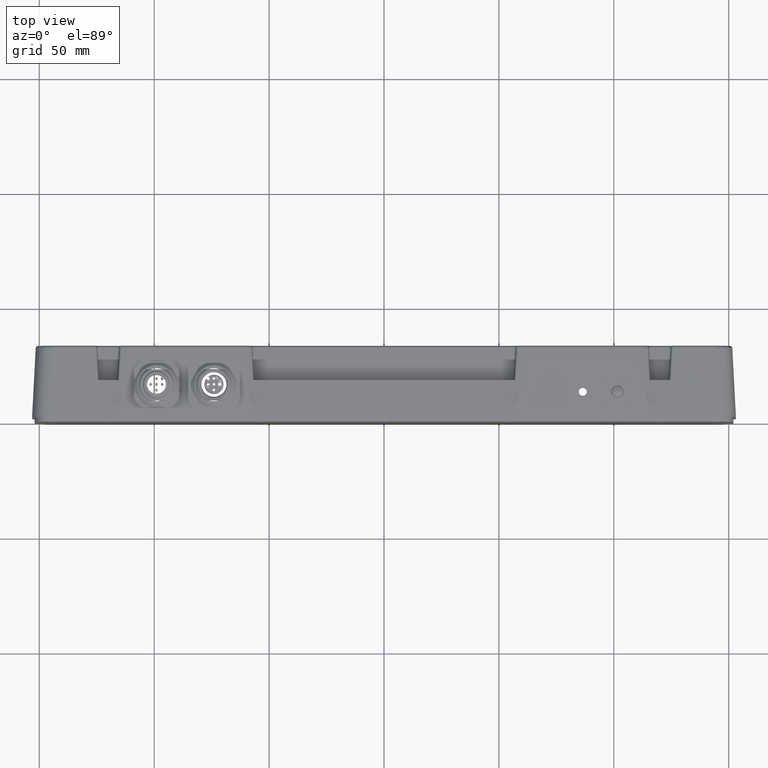
[diagram: clean part render]
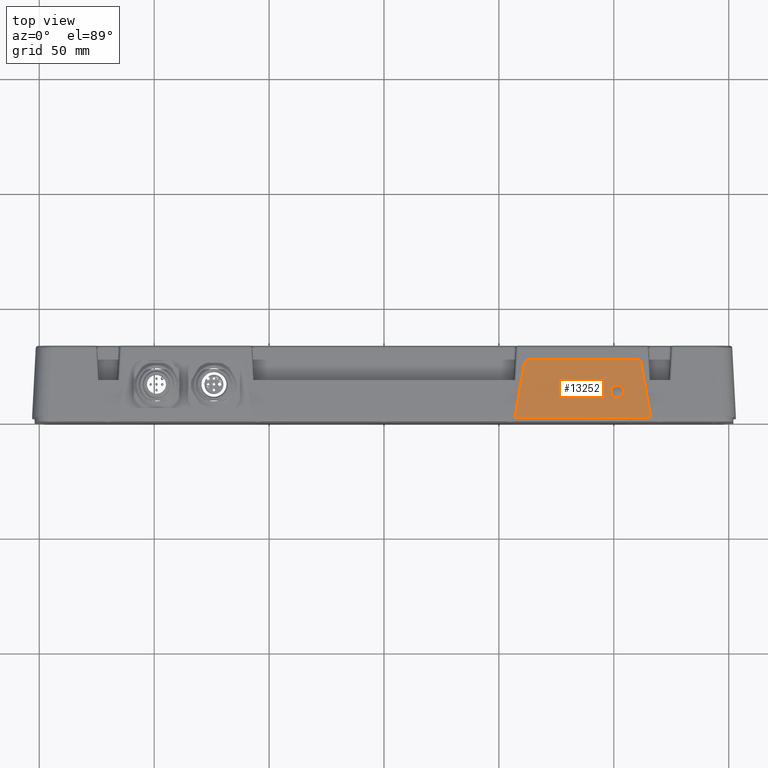
[diagram: same view with one face highlighted and labeled with its STEP entity id]
A machine part, top view. The second image highlights one B-rep face of the part: STEP entity #13252.
In plain terms, the highlighted planar face has unit normal (0, 0.0087, 1).
Its self-contained STEP definition (entity closure, byte-faithful):
#586 = DIRECTION ( 'NONE',  ( 0.000000000000000000, 0.008726535498373953759, 0.9999619230641713097 ) ) ;
#1626 = CARTESIAN_POINT ( 'NONE',  ( 101.5000000000000000, 10.21968862758748919, 32.55290903597765606 ) ) ;
#2273 = CARTESIAN_POINT ( 'NONE',  ( 111.7069147452497617, 26.34729797533385920, 32.41216552141884932 ) ) ;
#2535 = LINE ( 'NONE', #12931, #30423 ) ;
#3267 = FACE_BOUND ( 'NONE', #29582, .T. ) ;
#3398 = CARTESIAN_POINT ( 'NONE',  ( 63.08637378006618235, 27.00000162000000259, 32.40646946300529407 ) ) ;
#3487 = AXIS2_PLACEMENT_3D ( 'NONE', #24517, #586, #29498 ) ;
#3817 = CARTESIAN_POINT ( 'NONE',  ( 86.50000000000001421, 11.21965055065166617, 32.54418250047926620 ) ) ;
#4250 = CARTESIAN_POINT ( 'NONE',  ( 115.9033348786963415, 2.548216765040473675, 32.61985695668259666 ) ) ;
#4761 = CARTESIAN_POINT ( 'NONE',  ( 56.99999999999997158, 2.000001619999999924, 32.62464115777427764 ) ) ;
#5132 = CARTESIAN_POINT ( 'NONE',  ( 111.8832417259582002, 25.34729797533386275, 32.42089238920960526 ) ) ;
#6281 = AXIS2_PLACEMENT_3D ( 'NONE', #24773, #16846, #31960 ) ;
#6532 = EDGE_CURVE ( 'NONE', #9453, #9453, #9729, .T. ) ;
#7106 = ORIENTED_EDGE ( 'NONE', *, *, #30516, .T. ) ;
#7593 = DIRECTION ( 'NONE',  ( 1.000000000000000000, -0.000000000000000000, -0.000000000000000000 ) ) ;
#8214 = VECTOR ( 'NONE', #28083, 1000.000000000000114 ) ;
#9323 = VERTEX_POINT ( 'NONE', #22500 ) ;
#9453 = VERTEX_POINT ( 'NONE', #1626 ) ;
#9497 =( BOUNDED_CURVE ( )  B_SPLINE_CURVE ( 3, ( #5132, #2273, #15409, #23486 ),
 .UNSPECIFIED., .F., .T. ) 
 B_SPLINE_CURVE_WITH_KNOTS ( ( 4, 4 ),
 ( 1.745329251994332642, 3.141592653589793116 ),
 .UNSPECIFIED. ) 
 CURVE ( )  GEOMETRIC_REPRESENTATION_ITEM ( )  RATIONAL_B_SPLINE_CURVE ( ( 1.000000000000000000, 0.8440296287459859714, 0.8440296287459859714, 1.000000000000000000 ) ) 
 REPRESENTATION_ITEM ( '' )  );
#9705 = EDGE_CURVE ( 'NONE', #21030, #9323, #9497, .T. ) ;
#9729 = CIRCLE ( 'NONE', #22876, 2.750000000000008438 ) ;
#10209 =( BOUNDED_CURVE ( )  B_SPLINE_CURVE ( 3, ( #15519, #25822, #30788, #10377 ),
 .UNSPECIFIED., .F., .T. ) 
 B_SPLINE_CURVE_WITH_KNOTS ( ( 4, 4 ),
 ( 3.141592653589793116, 4.537856055185256920 ),
 .UNSPECIFIED. ) 
 CURVE ( )  GEOMETRIC_REPRESENTATION_ITEM ( )  RATIONAL_B_SPLINE_CURVE ( ( 1.000000000000000000, 0.8440296287459851943, 0.8440296287459851943, 1.000000000000000000 ) ) 
 REPRESENTATION_ITEM ( '' )  );
#10377 = CARTESIAN_POINT ( 'NONE',  ( 61.11675827404177141, 25.34729797533385920, 32.42089238920960526 ) ) ;
#10770 = EDGE_CURVE ( 'NONE', #33627, #21030, #14507, .T. ) ;
#10974 = FACE_OUTER_BOUND ( 'NONE', #17685, .T. ) ;
#11498 = CARTESIAN_POINT ( 'NONE',  ( 101.5000000000000000, 12.96958391601396876, 32.52891106335712834 ) ) ;
#11867 = ORIENTED_EDGE ( 'NONE', *, *, #18971, .T. ) ;
#12603 = CARTESIAN_POINT ( 'NONE',  ( 61.11675827404177141, 25.34729797533385920, 32.42089238920960526 ) ) ;
#12931 = CARTESIAN_POINT ( 'NONE',  ( 115.9999999999999858, 2.000001619999998592, 32.62464115777427764 ) ) ;
#13252 = ADVANCED_FACE ( 'NONE', ( #3267, #27082, #10974 ), #21592, .T. ) ;
#13266 = LINE ( 'NONE', #23570, #15636 ) ;
#14008 = EDGE_CURVE ( 'NONE', #27288, #27288, #28214, .T. ) ;
#14507 = LINE ( 'NONE', #4250, #8214 ) ;
#14824 = DIRECTION ( 'NONE',  ( -1.000000000000000000, -0.000000000000000000, -0.000000000000000000 ) ) ;
#15409 = CARTESIAN_POINT ( 'NONE',  ( 110.9290528318195470, 27.00000161999999904, 32.40646946300530118 ) ) ;
#15519 = CARTESIAN_POINT ( 'NONE',  ( 63.08637378006618235, 27.00000162000000259, 32.40646946300529407 ) ) ;
#15636 = VECTOR ( 'NONE', #16173, 1000.000000000000114 ) ;
#15955 = ORIENTED_EDGE ( 'NONE', *, *, #14008, .F. ) ;
#16173 = DIRECTION ( 'NONE',  ( -0.1736417650412786229, -0.9847713852049319039, 0.008593969682805855173 ) ) ;
#16846 = DIRECTION ( 'NONE',  ( -0.000000000000000000, 0.008726535498373953759, 0.9999619230641713097 ) ) ;
#16897 = VERTEX_POINT ( 'NONE', #3398 ) ;
#16959 = CARTESIAN_POINT ( 'NONE',  ( 115.9999999999999858, 2.000001619999998592, 32.62464115777427764 ) ) ;
#17660 = VERTEX_POINT ( 'NONE', #12603 ) ;
#17685 = EDGE_LOOP ( 'NONE', ( #24660, #7106, #11867, #26750, #28160, #29443 ) ) ;
#18133 = VECTOR ( 'NONE', #14824, 1000.000000000000000 ) ;
#18694 = DIRECTION ( 'NONE',  ( 0.000000000000000000, -0.9999619230641713097, 0.008726535498374718772 ) ) ;
#18931 = EDGE_CURVE ( 'NONE', #27793, #33627, #2535, .T. ) ;
#18971 = EDGE_CURVE ( 'NONE', #17660, #27793, #13266, .T. ) ;
#21030 = VERTEX_POINT ( 'NONE', #28264 ) ;
#21256 = DIRECTION ( 'NONE',  ( 0.000000000000000000, 0.008726535498373953759, 0.9999619230641713097 ) ) ;
#21592 = PLANE ( 'NONE',  #3487 ) ;
#22500 = CARTESIAN_POINT ( 'NONE',  ( 109.9136262199338034, 27.00000162000000259, 32.40646946300529407 ) ) ;
#22876 = AXIS2_PLACEMENT_3D ( 'NONE', #11498, #21256, #18694 ) ;
#22898 = CARTESIAN_POINT ( 'NONE',  ( 111.5918254822883569, 27.00000162000000259, 32.40646946300529407 ) ) ;
#23486 = CARTESIAN_POINT ( 'NONE',  ( 109.9136262199338034, 27.00000162000000259, 32.40646946300529407 ) ) ;
#23570 = CARTESIAN_POINT ( 'NONE',  ( 61.50451406748991445, 27.54637035716774918, 32.40170137527103833 ) ) ;
#24517 = CARTESIAN_POINT ( 'NONE',  ( 115.9999999999999858, 2.000001619999998592, 32.62464115777427764 ) ) ;
#24660 = ORIENTED_EDGE ( 'NONE', *, *, #33316, .T. ) ;
#24773 = CARTESIAN_POINT ( 'NONE',  ( 86.50000000000001421, 12.96958391601396698, 32.52891106335711413 ) ) ;
#25346 = EDGE_LOOP ( 'NONE', ( #27668 ) ) ;
#25822 = CARTESIAN_POINT ( 'NONE',  ( 62.07094716818043878, 27.00000161999999904, 32.40646946300530118 ) ) ;
#26750 = ORIENTED_EDGE ( 'NONE', *, *, #18931, .T. ) ;
#27082 = FACE_BOUND ( 'NONE', #25346, .T. ) ;
#27288 = VERTEX_POINT ( 'NONE', #3817 ) ;
#27668 = ORIENTED_EDGE ( 'NONE', *, *, #6532, .F. ) ;
#27793 = VERTEX_POINT ( 'NONE', #4761 ) ;
#28083 = DIRECTION ( 'NONE',  ( -0.1736417650412788449, 0.9847713852049319039, -0.008593969682805855173 ) ) ;
#28160 = ORIENTED_EDGE ( 'NONE', *, *, #10770, .T. ) ;
#28214 = CIRCLE ( 'NONE', #6281, 1.750000000000001554 ) ;
#28264 = CARTESIAN_POINT ( 'NONE',  ( 111.8832417259582002, 25.34729797533386275, 32.42089238920960526 ) ) ;
#29443 = ORIENTED_EDGE ( 'NONE', *, *, #9705, .T. ) ;
#29498 = DIRECTION ( 'NONE',  ( 0.000000000000000000, -0.9999619230641713097, 0.008726535498373953759 ) ) ;
#29582 = EDGE_LOOP ( 'NONE', ( #15955 ) ) ;
#30423 = VECTOR ( 'NONE', #7593, 1000.000000000000000 ) ;
#30516 = EDGE_CURVE ( 'NONE', #16897, #17660, #10209, .T. ) ;
#30788 = CARTESIAN_POINT ( 'NONE',  ( 61.29308525475021696, 26.34729797533386275, 32.41216552141884932 ) ) ;
#31960 = DIRECTION ( 'NONE',  ( 0.000000000000000000, -0.9999619230641714207, 0.008726535498374377031 ) ) ;
#32825 = LINE ( 'NONE', #22898, #18133 ) ;
#33316 = EDGE_CURVE ( 'NONE', #9323, #16897, #32825, .T. ) ;
#33627 = VERTEX_POINT ( 'NONE', #16959 ) ;